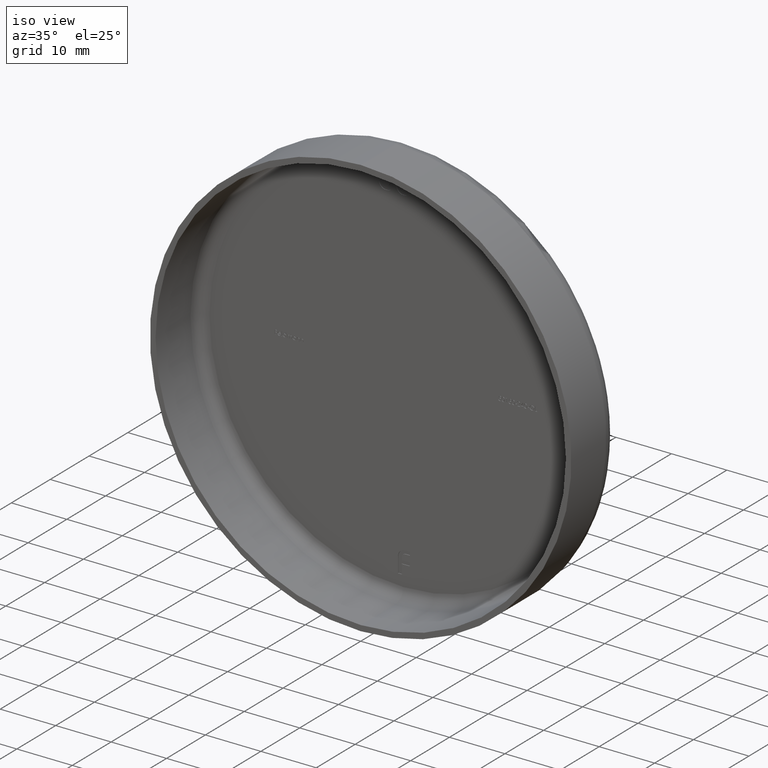
[diagram: clean part render]
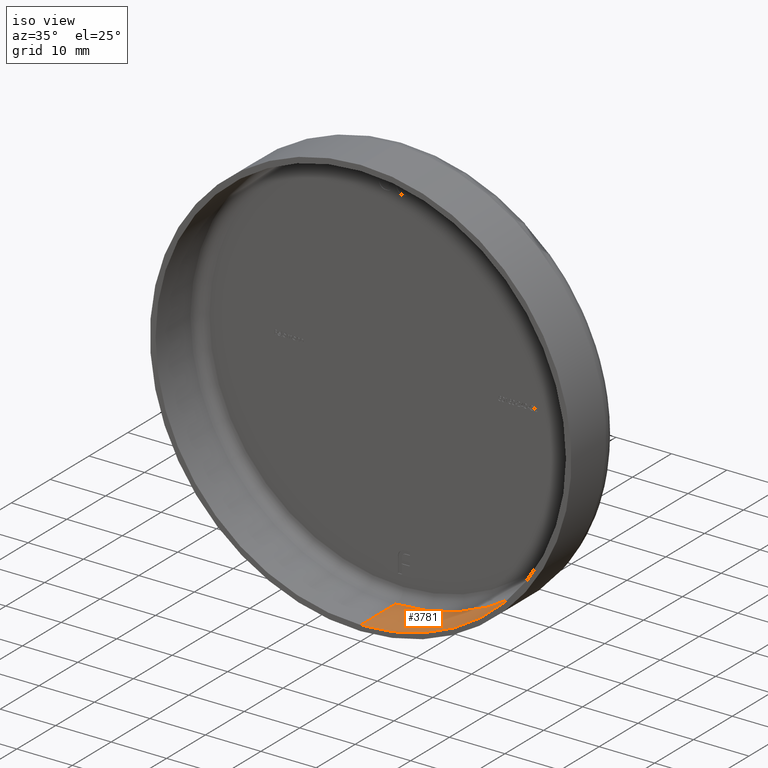
[diagram: same view with one face highlighted and labeled with its STEP entity id]
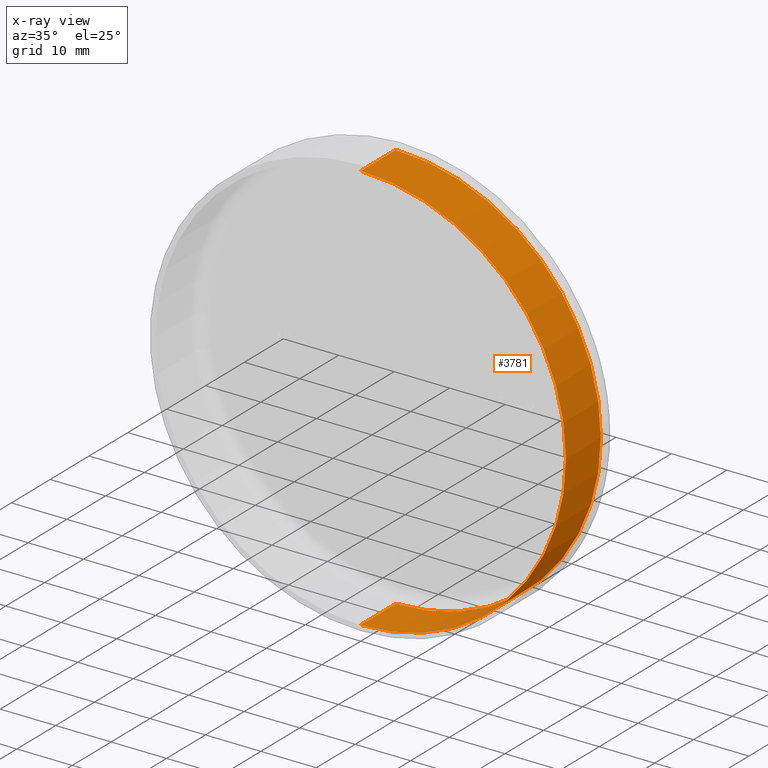
[diagram: x-ray of the same camera — body ghosted, the highlighted face saturated]
A machine part, iso view. The second image highlights one B-rep face of the part: STEP entity #3781.
The next image is the same camera in x-ray: the body ghosted, the highlighted face saturated — about 0% of this face is hidden behind the body in this view.
In plain terms, the highlighted cylindrical surface (partial cylindrical patch) has radius 37 mm, axis along (-0, -1, -0).
Its self-contained STEP definition (entity closure, byte-faithful):
#1479 = VERTEX_POINT ( 'NONE', #7387 ) ;
#2398 = AXIS2_PLACEMENT_3D ( 'NONE', #10397, #16786, #6123 ) ;
#2883 = ORIENTED_EDGE ( 'NONE', *, *, #14243, .T. ) ;
#3393 = EDGE_CURVE ( 'NONE', #3741, #7180, #11572, .T. ) ;
#3556 = DIRECTION ( 'NONE',  ( 0.000000000000000000, 0.000000000000000000, -1.000000000000000000 ) ) ;
#3741 = VERTEX_POINT ( 'NONE', #4878 ) ;
#3781 = ADVANCED_FACE ( 'NONE', ( #10722 ), #9265, .F. ) ;
#4629 = VECTOR ( 'NONE', #4961, 1000.000000000000000 ) ;
#4774 = EDGE_LOOP ( 'NONE', ( #14932, #6917, #4876, #2883 ) ) ;
#4876 = ORIENTED_EDGE ( 'NONE', *, *, #15002, .T. ) ;
#4878 = CARTESIAN_POINT ( 'NONE',  ( 4.531193156845207581E-15, 9.000000000000001776, 37.00000000000000711 ) ) ;
#4961 = DIRECTION ( 'NONE',  ( -0.000000000000000000, -1.000000000000000000, -0.000000000000000000 ) ) ;
#6123 = DIRECTION ( 'NONE',  ( 0.000000000000000000, 0.000000000000000000, -1.000000000000000000 ) ) ;
#6197 = CARTESIAN_POINT ( 'NONE',  ( 0.000000000000000000, 0.000000000000000000, -37.00000000000000711 ) ) ;
#6917 = ORIENTED_EDGE ( 'NONE', *, *, #9579, .F. ) ;
#7180 = VERTEX_POINT ( 'NONE', #12826 ) ;
#7387 = CARTESIAN_POINT ( 'NONE',  ( 0.000000000000000000, 9.000000000000001776, -37.00000000000000711 ) ) ;
#7701 = DIRECTION ( 'NONE',  ( -0.000000000000000000, -1.000000000000000000, -0.000000000000000000 ) ) ;
#8115 = AXIS2_PLACEMENT_3D ( 'NONE', #15676, #7701, #3556 ) ;
#9145 = AXIS2_PLACEMENT_3D ( 'NONE', #15729, #10392, #14326 ) ;
#9265 = CYLINDRICAL_SURFACE ( 'NONE', #2398, 37.00000000000000711 ) ;
#9579 = EDGE_CURVE ( 'NONE', #1479, #3741, #14985, .T. ) ;
#10392 = DIRECTION ( 'NONE',  ( -0.000000000000000000, -1.000000000000000000, -0.000000000000000000 ) ) ;
#10397 = CARTESIAN_POINT ( 'NONE',  ( 0.000000000000000000, 0.000000000000000000, 0.000000000000000000 ) ) ;
#10722 = FACE_OUTER_BOUND ( 'NONE', #4774, .T. ) ;
#11572 = LINE ( 'NONE', #16140, #16351 ) ;
#12826 = CARTESIAN_POINT ( 'NONE',  ( 4.531193156845207581E-15, -1.224646799147353207E-16, 37.00000000000000711 ) ) ;
#13351 = DIRECTION ( 'NONE',  ( -0.000000000000000000, -1.000000000000000000, -0.000000000000000000 ) ) ;
#13423 = LINE ( 'NONE', #6197, #4629 ) ;
#14243 = EDGE_CURVE ( 'NONE', #16074, #7180, #16407, .T. ) ;
#14326 = DIRECTION ( 'NONE',  ( 0.000000000000000000, 0.000000000000000000, -1.000000000000000000 ) ) ;
#14932 = ORIENTED_EDGE ( 'NONE', *, *, #3393, .F. ) ;
#14985 = CIRCLE ( 'NONE', #8115, 37.00000000000000711 ) ;
#15002 = EDGE_CURVE ( 'NONE', #1479, #16074, #13423, .T. ) ;
#15676 = CARTESIAN_POINT ( 'NONE',  ( 0.000000000000000000, 9.000000000000001776, 0.000000000000000000 ) ) ;
#15729 = CARTESIAN_POINT ( 'NONE',  ( 0.000000000000000000, -1.224646799147353207E-16, 0.000000000000000000 ) ) ;
#16074 = VERTEX_POINT ( 'NONE', #16897 ) ;
#16140 = CARTESIAN_POINT ( 'NONE',  ( 4.531193156845207581E-15, 0.000000000000000000, 37.00000000000000711 ) ) ;
#16351 = VECTOR ( 'NONE', #13351, 1000.000000000000000 ) ;
#16407 = CIRCLE ( 'NONE', #9145, 37.00000000000000711 ) ;
#16786 = DIRECTION ( 'NONE',  ( -0.000000000000000000, -1.000000000000000000, -0.000000000000000000 ) ) ;
#16897 = CARTESIAN_POINT ( 'NONE',  ( 0.000000000000000000, -1.224646799147353207E-16, -37.00000000000000711 ) ) ;